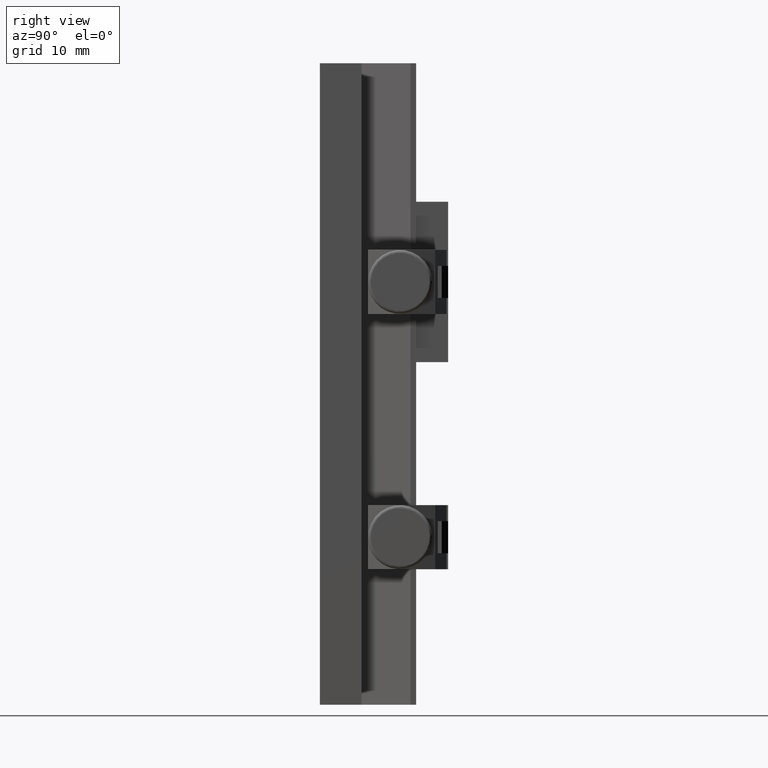
[diagram: clean part render]
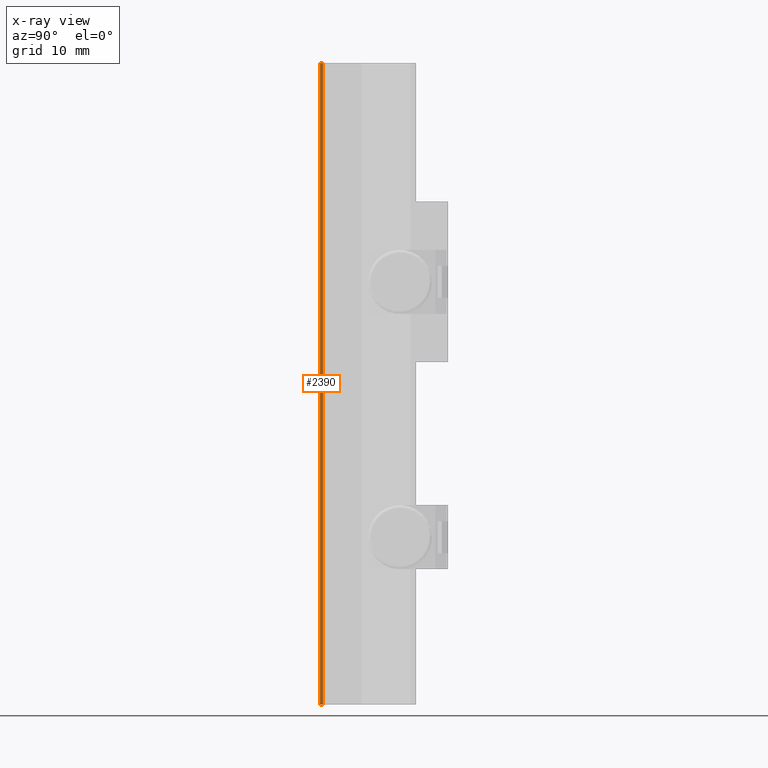
[diagram: x-ray — body ghosted, one internal face saturated and labeled with its STEP entity id]
A machine part, right view, then the same camera in x-ray: the body is ghosted and one INTERNAL B-rep face — a face not visible from any outside direction — is saturated and labeled: STEP entity #2390.
In plain terms, the highlighted planar face has unit normal (-1, 0, -0).
Its self-contained STEP definition (entity closure, byte-faithful):
#118 = DIRECTION ( 'NONE',  ( -1.000000000000000000, 0.000000000000000000, -1.236303256585107026E-16 ) ) ;
#119 = CARTESIAN_POINT ( 'NONE',  ( -14.99999999999999467, 16.00000000000000000, -50.00000000000000000 ) ) ;
#381 = CARTESIAN_POINT ( 'NONE',  ( -15.00000000000000888, 16.00000000000000000, 50.00000000000000000 ) ) ;
#605 = CARTESIAN_POINT ( 'NONE',  ( -15.00000000000003730, -5.999999999999996447, 294.6622748219313621 ) ) ;
#661 = CARTESIAN_POINT ( 'NONE',  ( -15.00000000000003730, -5.999999999999996447, 294.6622748219313621 ) ) ;
#708 = EDGE_LOOP ( 'NONE', ( #3830, #3185, #1261, #3204 ) ) ;
#714 = EDGE_CURVE ( 'NONE', #5033, #2333, #923, .T. ) ;
#729 = DIRECTION ( 'NONE',  ( 0.000000000000000000, -1.000000000000000000, 0.000000000000000000 ) ) ;
#808 = VECTOR ( 'NONE', #3776, 1000.000000000000000 ) ;
#923 = LINE ( 'NONE', #119, #808 ) ;
#978 = CARTESIAN_POINT ( 'NONE',  ( -14.99999999999999467, -6.499999999999996447, -49.99999999999998579 ) ) ;
#1088 = EDGE_CURVE ( 'NONE', #3310, #5033, #3167, .T. ) ;
#1143 = VERTEX_POINT ( 'NONE', #5157 ) ;
#1261 = ORIENTED_EDGE ( 'NONE', *, *, #714, .F. ) ;
#1673 = EDGE_CURVE ( 'NONE', #3310, #1143, #1977, .T. ) ;
#1977 = LINE ( 'NONE', #381, #3311 ) ;
#2231 = PLANE ( 'NONE',  #3263 ) ;
#2333 = VERTEX_POINT ( 'NONE', #978 ) ;
#2349 = DIRECTION ( 'NONE',  ( 1.236303256585107026E-16, 0.000000000000000000, -1.000000000000000000 ) ) ;
#2365 = DIRECTION ( 'NONE',  ( 1.236303256585107026E-16, 0.000000000000000000, -1.000000000000000000 ) ) ;
#2390 = ADVANCED_FACE ( 'NONE', ( #3805 ), #2231, .F. ) ;
#2443 = EDGE_CURVE ( 'NONE', #1143, #2333, #3471, .T. ) ;
#3096 = VECTOR ( 'NONE', #2365, 1000.000000000000000 ) ;
#3167 = LINE ( 'NONE', #661, #3096 ) ;
#3185 = ORIENTED_EDGE ( 'NONE', *, *, #2443, .T. ) ;
#3204 = ORIENTED_EDGE ( 'NONE', *, *, #1088, .F. ) ;
#3263 = AXIS2_PLACEMENT_3D ( 'NONE', #605, #118, #3861 ) ;
#3310 = VERTEX_POINT ( 'NONE', #4051 ) ;
#3311 = VECTOR ( 'NONE', #729, 1000.000000000000000 ) ;
#3471 = LINE ( 'NONE', #4383, #4640 ) ;
#3776 = DIRECTION ( 'NONE',  ( 0.000000000000000000, -1.000000000000000000, 0.000000000000000000 ) ) ;
#3805 = FACE_OUTER_BOUND ( 'NONE', #708, .T. ) ;
#3830 = ORIENTED_EDGE ( 'NONE', *, *, #1673, .T. ) ;
#3861 = DIRECTION ( 'NONE',  ( 1.236303256585107026E-16, 0.000000000000000000, -1.000000000000000000 ) ) ;
#4051 = CARTESIAN_POINT ( 'NONE',  ( -15.00000000000000888, -5.999999999999996447, 49.99999999999998579 ) ) ;
#4383 = CARTESIAN_POINT ( 'NONE',  ( -15.00000000000003730, -6.499999999999996447, 294.6622748219313621 ) ) ;
#4640 = VECTOR ( 'NONE', #2349, 1000.000000000000000 ) ;
#5023 = CARTESIAN_POINT ( 'NONE',  ( -15.00000000000003730, -5.999999999999998224, -50.00000000000000000 ) ) ;
#5033 = VERTEX_POINT ( 'NONE', #5023 ) ;
#5157 = CARTESIAN_POINT ( 'NONE',  ( -15.00000000000000888, -6.499999999999996447, 49.99999999999998579 ) ) ;